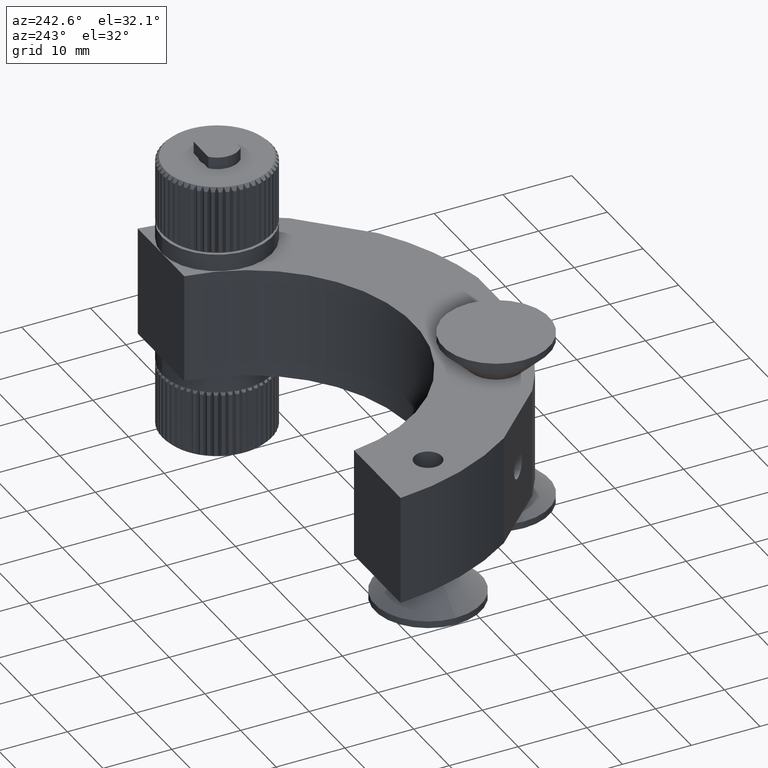
[diagram: clean part render]
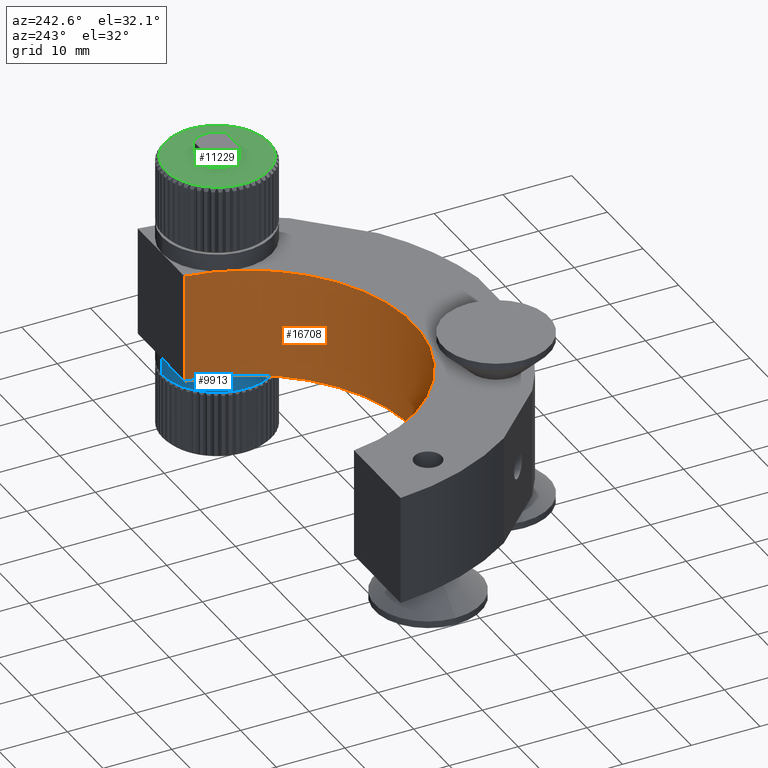
[diagram: same view with three faces highlighted in distinct colors, each labeled with its STEP entity id]
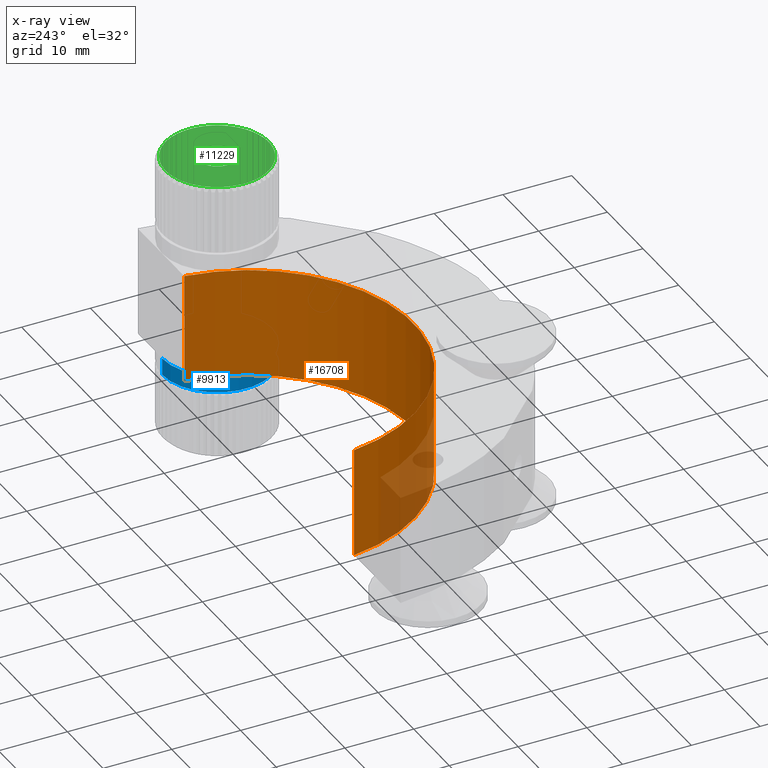
[diagram: x-ray of the same camera — body ghosted, the three highlighted faces saturated]
A machine part, auxiliary view with three faces highlighted in distinct colors.
The next image is the same camera in x-ray (body ghosted, the three faces saturated) — at least one of them is partly hidden behind the body in this view.
Their STEP definitions:

[orange] entity #16708 — the highlighted cylindrical surface (partial cylindrical patch) has radius 24 mm, axis along (-0, -0, -1).
#9 = CIRCLE ( 'NONE', #17246, 24.00000000000000400 ) ;
#1022 = VERTEX_POINT ( 'NONE', #12385 ) ;
#1084 = FACE_OUTER_BOUND ( 'NONE', #1544, .T. ) ;
#1292 = CYLINDRICAL_SURFACE ( 'NONE', #4463, 24.00000000000000400 ) ;
#1524 = EDGE_CURVE ( 'NONE', #11058, #1022, #7296, .T. ) ;
#1544 = EDGE_LOOP ( 'NONE', ( #13020, #7971, #2978, #14307 ) ) ;
#2602 = DIRECTION ( 'NONE',  ( -0.0000000000000000000, -0.0000000000000000000, -1.000000000000000000 ) ) ;
#2978 = ORIENTED_EDGE ( 'NONE', *, *, #16093, .F. ) ;
#3117 = DIRECTION ( 'NONE',  ( -1.000000000000000000, 0.0000000000000000000, 0.0000000000000000000 ) ) ;
#4430 = DIRECTION ( 'NONE',  ( -0.0000000000000000000, -0.0000000000000000000, -1.000000000000000000 ) ) ;
#4463 = AXIS2_PLACEMENT_3D ( 'NONE', #8891, #17143, #3117 ) ;
#4467 = DIRECTION ( 'NONE',  ( -0.0000000000000000000, -0.0000000000000000000, -1.000000000000000000 ) ) ;
#4930 = LINE ( 'NONE', #7989, #16016 ) ;
#5321 = CARTESIAN_POINT ( 'NONE',  ( 2.679613284590009600, 1.898059409918034800, -8.000000000000000000 ) ) ;
#5456 = CARTESIAN_POINT ( 'NONE',  ( 26.49137508417133100, -1.101940590081930300, 8.000000000000000000 ) ) ;
#5718 = EDGE_CURVE ( 'NONE', #1022, #10369, #16532, .T. ) ;
#7269 = DIRECTION ( 'NONE',  ( 1.000000000000000000, 0.0000000000000000000, 0.0000000000000000000 ) ) ;
#7296 = LINE ( 'NONE', #15579, #14278 ) ;
#7971 = ORIENTED_EDGE ( 'NONE', *, *, #11067, .F. ) ;
#7989 = CARTESIAN_POINT ( 'NONE',  ( -21.13214851499131400, -1.101940590081921200, 8.000000000000000000 ) ) ;
#7994 = AXIS2_PLACEMENT_3D ( 'NONE', #5321, #13778, #16496 ) ;
#8891 = CARTESIAN_POINT ( 'NONE',  ( 2.679613284590009600, 1.898059409918034800, 8.000000000000000000 ) ) ;
#10301 = VERTEX_POINT ( 'NONE', #15314 ) ;
#10369 = VERTEX_POINT ( 'NONE', #12266 ) ;
#11058 = VERTEX_POINT ( 'NONE', #5456 ) ;
#11067 = EDGE_CURVE ( 'NONE', #10301, #10369, #4930, .T. ) ;
#12266 = CARTESIAN_POINT ( 'NONE',  ( -21.13214851499131400, -1.101940590081921200, -8.000000000000000000 ) ) ;
#12385 = CARTESIAN_POINT ( 'NONE',  ( 26.49137508417133100, -1.101940590081930300, -8.000000000000000000 ) ) ;
#13020 = ORIENTED_EDGE ( 'NONE', *, *, #5718, .T. ) ;
#13778 = DIRECTION ( 'NONE',  ( -0.0000000000000000000, -0.0000000000000000000, -1.000000000000000000 ) ) ;
#14278 = VECTOR ( 'NONE', #4467, 1000.000000000000000 ) ;
#14307 = ORIENTED_EDGE ( 'NONE', *, *, #1524, .T. ) ;
#15314 = CARTESIAN_POINT ( 'NONE',  ( -21.13214851499131400, -1.101940590081921200, 8.000000000000000000 ) ) ;
#15579 = CARTESIAN_POINT ( 'NONE',  ( 26.49137508417133100, -1.101940590081930300, 8.000000000000000000 ) ) ;
#15671 = CARTESIAN_POINT ( 'NONE',  ( 2.679613284590009600, 1.898059409918034800, 8.000000000000000000 ) ) ;
#16016 = VECTOR ( 'NONE', #2602, 1000.000000000000000 ) ;
#16093 = EDGE_CURVE ( 'NONE', #11058, #10301, #9, .T. ) ;
#16496 = DIRECTION ( 'NONE',  ( 1.000000000000000000, 0.0000000000000000000, 0.0000000000000000000 ) ) ;
#16532 = CIRCLE ( 'NONE', #7994, 24.00000000000000400 ) ;
#16708 = ADVANCED_FACE ( 'NONE', ( #1084 ), #1292, .F. ) ;
#17143 = DIRECTION ( 'NONE',  ( -0.0000000000000000000, -0.0000000000000000000, -1.000000000000000000 ) ) ;
#17246 = AXIS2_PLACEMENT_3D ( 'NONE', #15671, #4430, #7269 ) ;

[blue] entity #9913 — the highlighted cylindrical surface (partial cylindrical patch) has radius 8 mm, axis along (0, 0, -1).
#455 = ORIENTED_EDGE ( 'NONE', *, *, #9788, .T. ) ;
#1033 = DIRECTION ( 'NONE',  ( 0.0000000000000000000, 1.000000000000000000, 0.0000000000000000000 ) ) ;
#1042 = ORIENTED_EDGE ( 'NONE', *, *, #8458, .F. ) ;
#1061 = ORIENTED_EDGE ( 'NONE', *, *, #6393, .T. ) ;
#2817 = FACE_OUTER_BOUND ( 'NONE', #16524, .T. ) ;
#2980 = CARTESIAN_POINT ( 'NONE',  ( 32.72957168722360400, -1.101940590081937500, -8.000000000000000000 ) ) ;
#3141 = CARTESIAN_POINT ( 'NONE',  ( 32.72957168722360400, -17.10194059008193800, -8.000000000000000000 ) ) ;
#3237 = CARTESIAN_POINT ( 'NONE',  ( 32.72957168722360400, -9.101940590081937900, -15.60000000000002600 ) ) ;
#4912 = VERTEX_POINT ( 'NONE', #13113 ) ;
#6393 = EDGE_CURVE ( 'NONE', #10683, #12988, #13271, .T. ) ;
#6638 = EDGE_CURVE ( 'NONE', #10683, #8582, #16063, .T. ) ;
#7770 = CARTESIAN_POINT ( 'NONE',  ( 32.72957168722360400, -17.10194059008193800, -10.49999999999999800 ) ) ;
#8124 = DIRECTION ( 'NONE',  ( 0.0000000000000000000, 0.0000000000000000000, -1.000000000000000000 ) ) ;
#8458 = EDGE_CURVE ( 'NONE', #8582, #4912, #17986, .T. ) ;
#8496 = DIRECTION ( 'NONE',  ( 0.0000000000000000000, 0.0000000000000000000, -1.000000000000000000 ) ) ;
#8523 = CARTESIAN_POINT ( 'NONE',  ( 32.72957168722360400, -1.101940590081937500, -15.60000000000002600 ) ) ;
#8545 = AXIS2_PLACEMENT_3D ( 'NONE', #3237, #17190, #11370 ) ;
#8574 = DIRECTION ( 'NONE',  ( 0.0000000000000000000, 0.0000000000000000000, -1.000000000000000000 ) ) ;
#8582 = VERTEX_POINT ( 'NONE', #7770 ) ;
#8874 = DIRECTION ( 'NONE',  ( 0.0000000000000000000, 1.000000000000000000, 0.0000000000000000000 ) ) ;
#8884 = CYLINDRICAL_SURFACE ( 'NONE', #8545, 8.000000000000000000 ) ;
#9280 = CARTESIAN_POINT ( 'NONE',  ( 32.72957168722360400, -9.101940590081937900, -8.000000000000000000 ) ) ;
#9772 = AXIS2_PLACEMENT_3D ( 'NONE', #9280, #8124, #1033 ) ;
#9788 = EDGE_CURVE ( 'NONE', #12988, #4912, #16723, .T. ) ;
#9913 = ADVANCED_FACE ( 'NONE', ( #2817 ), #8884, .T. ) ;
#10683 = VERTEX_POINT ( 'NONE', #3141 ) ;
#11370 = DIRECTION ( 'NONE',  ( 0.0000000000000000000, 1.000000000000000000, 0.0000000000000000000 ) ) ;
#12988 = VERTEX_POINT ( 'NONE', #2980 ) ;
#13113 = CARTESIAN_POINT ( 'NONE',  ( 32.72957168722360400, -1.101940590081937500, -10.49999999999999800 ) ) ;
#13271 = CIRCLE ( 'NONE', #9772, 8.000000000000000000 ) ;
#13913 = VECTOR ( 'NONE', #8574, 1000.000000000000000 ) ;
#15489 = CARTESIAN_POINT ( 'NONE',  ( 32.72957168722360400, -17.10194059008193800, -15.60000000000002600 ) ) ;
#15632 = VECTOR ( 'NONE', #8496, 1000.000000000000000 ) ;
#15807 = DIRECTION ( 'NONE',  ( 0.0000000000000000000, 0.0000000000000000000, -1.000000000000000000 ) ) ;
#16063 = LINE ( 'NONE', #15489, #15632 ) ;
#16316 = AXIS2_PLACEMENT_3D ( 'NONE', #17189, #15807, #8874 ) ;
#16524 = EDGE_LOOP ( 'NONE', ( #17023, #1061, #455, #1042 ) ) ;
#16723 = LINE ( 'NONE', #8523, #13913 ) ;
#17023 = ORIENTED_EDGE ( 'NONE', *, *, #6638, .F. ) ;
#17189 = CARTESIAN_POINT ( 'NONE',  ( 32.72957168722360400, -9.101940590081937900, -10.49999999999999800 ) ) ;
#17190 = DIRECTION ( 'NONE',  ( 0.0000000000000000000, 0.0000000000000000000, -1.000000000000000000 ) ) ;
#17986 = CIRCLE ( 'NONE', #16316, 8.000000000000000000 ) ;

[green] entity #11229 — the highlighted planar face has unit normal (0, 0, -1).
#39 = CARTESIAN_POINT ( 'NONE',  ( 32.72957168722360400, -9.101940590081930800, 20.49999999999999600 ) ) ;
#41 = EDGE_CURVE ( 'NONE', #13455, #6717, #4412, .T. ) ;
#135 = CARTESIAN_POINT ( 'NONE',  ( 32.72957168722360400, -9.101940590081930800, 20.49999999999999600 ) ) ;
#175 = FACE_BOUND ( 'NONE', #4512, .T. ) ;
#181 = AXIS2_PLACEMENT_3D ( 'NONE', #15519, #16735, #16898 ) ;
#206 = VERTEX_POINT ( 'NONE', #10431 ) ;
#263 = CARTESIAN_POINT ( 'NONE',  ( 36.66704107724093800, -15.48522617061788900, 20.49999999999994000 ) ) ;
#437 = EDGE_CURVE ( 'NONE', #2312, #17559, #6136, .T. ) ;
#444 = CIRCLE ( 'NONE', #1977, 7.500000000000076400 ) ;
#445 = DIRECTION ( 'NONE',  ( -4.084704991248906100E-017, -1.996894397135098800E-016, 1.000000000000000000 ) ) ;
#466 = DIRECTION ( 'NONE',  ( -0.7699256614267302500, 0.6381335877985204700, 0.0000000000000000000 ) ) ;
#492 = DIRECTION ( 'NONE',  ( -0.7699256614267365700, 0.6381335877985129200, 0.0000000000000000000 ) ) ;
#523 = AXIS2_PLACEMENT_3D ( 'NONE', #2425, #14067, #11970 ) ;
#537 = CIRCLE ( 'NONE', #3533, 7.500000000000075500 ) ;
#638 = CARTESIAN_POINT ( 'NONE',  ( 25.42146428647427600, -10.78763517069643100, 20.49999999999999600 ) ) ;
#642 = AXIS2_PLACEMENT_3D ( 'NONE', #12780, #14148, #8644 ) ;
#672 = DIRECTION ( 'NONE',  ( -4.084704991248906100E-017, -1.996894397135098800E-016, 1.000000000000000000 ) ) ;
#703 = EDGE_CURVE ( 'NONE', #14466, #1725, #2444, .T. ) ;
#725 = EDGE_CURVE ( 'NONE', #3020, #11969, #10551, .T. ) ;
#793 = DIRECTION ( 'NONE',  ( -0.7699256614267370200, 0.6381335877985121500, 0.0000000000000000000 ) ) ;
#822 = DIRECTION ( 'NONE',  ( -4.084704991248906100E-017, -1.996894397135098800E-016, 1.000000000000000000 ) ) ;
#893 = CARTESIAN_POINT ( 'NONE',  ( 29.04048497832607000, -15.63192062483210000, 20.50000000000005700 ) ) ;
#993 = AXIS2_PLACEMENT_3D ( 'NONE', #1752, #4377, #11346 ) ;
#1017 = DIRECTION ( 'NONE',  ( -0.7699256614267352400, 0.6381335877985142600, 0.0000000000000000000 ) ) ;
#1032 = DIRECTION ( 'NONE',  ( -0.7699256614267361300, 0.6381335877985134800, 0.0000000000000000000 ) ) ;
#1047 = CIRCLE ( 'NONE', #523, 7.500000000000076400 ) ;
#1091 = AXIS2_PLACEMENT_3D ( 'NONE', #5547, #14187, #1714 ) ;
#1107 = VERTEX_POINT ( 'NONE', #7161 ) ;
#1157 = DIRECTION ( 'NONE',  ( -0.7699256614267580000, 0.6381335877984869500, 0.0000000000000000000 ) ) ;
#1168 = EDGE_CURVE ( 'NONE', #9960, #6707, #3404, .T. ) ;
#1212 = VERTEX_POINT ( 'NONE', #2175 ) ;
#1340 = CARTESIAN_POINT ( 'NONE',  ( 26.02186996956961500, -12.45704679808516100, 20.49999999999999600 ) ) ;
#1359 = DIRECTION ( 'NONE',  ( -4.084704991248906100E-017, -1.996894397135098800E-016, 1.000000000000000000 ) ) ;
#1388 = CIRCLE ( 'NONE', #3319, 7.500000000000076400 ) ;
#1436 = ORIENTED_EDGE ( 'NONE', *, *, #7013, .T. ) ;
#1457 = DIRECTION ( 'NONE',  ( -0.7699256614267495600, 0.6381335877984971600, 0.0000000000000000000 ) ) ;
#1467 = FACE_OUTER_BOUND ( 'NONE', #10613, .T. ) ;
#1475 = CIRCLE ( 'NONE', #8859, 7.500000000000076400 ) ;
#1481 = DIRECTION ( 'NONE',  ( -4.084704991248906100E-017, -1.996894397135098800E-016, 1.000000000000000000 ) ) ;
#1566 = AXIS2_PLACEMENT_3D ( 'NONE', #1935, #4729, #12935 ) ;
#1610 = CARTESIAN_POINT ( 'NONE',  ( 32.72957168722360400, -9.101940590081930800, 20.49999999999999600 ) ) ;
#1618 = DIRECTION ( 'NONE',  ( -0.7699256614267370200, 0.6381335877985121500, 0.0000000000000000000 ) ) ;
#1624 = VERTEX_POINT ( 'NONE', #14436 ) ;
#1633 = ORIENTED_EDGE ( 'NONE', *, *, #2031, .T. ) ;
#1650 = EDGE_CURVE ( 'NONE', #13944, #16092, #4033, .T. ) ;
#1714 = DIRECTION ( 'NONE',  ( -0.7699256614267370200, 0.6381335877985121500, 0.0000000000000000000 ) ) ;
#1725 = VERTEX_POINT ( 'NONE', #14493 ) ;
#1733 = ORIENTED_EDGE ( 'NONE', *, *, #14565, .T. ) ;
#1752 = CARTESIAN_POINT ( 'NONE',  ( 32.72957168722360400, -9.101940590081930800, 20.49999999999999600 ) ) ;
#1764 = EDGE_CURVE ( 'NONE', #17982, #10414, #1857, .T. ) ;
#1795 = CARTESIAN_POINT ( 'NONE',  ( 39.92498248568941200, -6.986269670179265900, 20.49999999999994000 ) ) ;
#1857 = CIRCLE ( 'NONE', #3634, 7.500000000000076400 ) ;
#1863 = AXIS2_PLACEMENT_3D ( 'NONE', #135, #16710, #15495 ) ;
#1879 = ORIENTED_EDGE ( 'NONE', *, *, #4557, .T. ) ;
#1901 = ORIENTED_EDGE ( 'NONE', *, *, #16601, .T. ) ;
#1904 = CIRCLE ( 'NONE', #17267, 7.500000000000076400 ) ;
#1935 = CARTESIAN_POINT ( 'NONE',  ( 32.72957168722360400, -9.101940590081930800, 20.49999999999999600 ) ) ;
#1939 = CARTESIAN_POINT ( 'NONE',  ( 32.72957168722360400, -9.101940590081930800, 20.49999999999999600 ) ) ;
#1977 = AXIS2_PLACEMENT_3D ( 'NONE', #13265, #7711, #7833 ) ;
#1981 = DIRECTION ( 'NONE',  ( -0.7699256614267371300, 0.6381335877985121500, 0.0000000000000000000 ) ) ;
#1988 = EDGE_CURVE ( 'NONE', #206, #8560, #9864, .T. ) ;
#1996 = AXIS2_PLACEMENT_3D ( 'NONE', #14229, #15497, #15446 ) ;
#2031 = EDGE_CURVE ( 'NONE', #12019, #17261, #9441, .T. ) ;
#2048 = VERTEX_POINT ( 'NONE', #3631 ) ;
#2125 = EDGE_CURVE ( 'NONE', #12662, #3220, #8364, .T. ) ;
#2175 = CARTESIAN_POINT ( 'NONE',  ( 28.29405687897052200, -15.14976733906937400, 20.50000000000005700 ) ) ;
#2222 = CARTESIAN_POINT ( 'NONE',  ( 26.55296185857062600, -4.847590930664035900, 20.49999999999999600 ) ) ;
#2255 = CARTESIAN_POINT ( 'NONE',  ( 32.72957168722360400, -9.101940590081930800, 20.49999999999999600 ) ) ;
#2260 = CARTESIAN_POINT ( 'NONE',  ( 32.72957168722360400, -9.101940590081930800, 20.49999999999999600 ) ) ;
#2312 = VERTEX_POINT ( 'NONE', #13461 ) ;
#2315 = AXIS2_PLACEMENT_3D ( 'NONE', #15435, #6990, #1457 ) ;
#2317 = ORIENTED_EDGE ( 'NONE', *, *, #14251, .T. ) ;
#2386 = CARTESIAN_POINT ( 'NONE',  ( 32.72957168722360400, -9.101940590081930800, 20.49999999999999600 ) ) ;
#2417 = CARTESIAN_POINT ( 'NONE',  ( 35.88443293113601100, -15.90611949217290400, 20.49999999999999600 ) ) ;
#2425 = CARTESIAN_POINT ( 'NONE',  ( 32.72957168722360400, -9.101940590081930800, 20.49999999999999600 ) ) ;
#2444 = CIRCLE ( 'NONE', #8692, 2.500000000000014700 ) ;
#2478 = EDGE_CURVE ( 'NONE', #14253, #12483, #4021, .T. ) ;
#2480 = DIRECTION ( 'NONE',  ( -0.7699256614267370200, 0.6381335877985121500, 0.0000000000000000000 ) ) ;
#2520 = AXIS2_PLACEMENT_3D ( 'NONE', #13734, #15018, #10781 ) ;
#2537 = DIRECTION ( 'NONE',  ( -0.7699256614267528900, 0.6381335877984930500, 0.0000000000000000000 ) ) ;
#2554 = DIRECTION ( 'NONE',  ( -0.7699256614267167000, 0.6381335877985367900, 0.0000000000000000000 ) ) ;
#2555 = CIRCLE ( 'NONE', #14612, 7.500000000000076400 ) ;
#2607 = CIRCLE ( 'NONE', #10612, 7.500000000000075500 ) ;
#2631 = VERTEX_POINT ( 'NONE', #8926 ) ;
#2632 = ORIENTED_EDGE ( 'NONE', *, *, #8383, .T. ) ;
#2650 = CARTESIAN_POINT ( 'NONE',  ( 32.72957168722360400, -9.101940590081930800, 20.49999999999999600 ) ) ;
#2664 = CARTESIAN_POINT ( 'NONE',  ( 35.20539366592880300, -2.022371003605616800, 20.49999999999999600 ) ) ;
#2815 = EDGE_CURVE ( 'NONE', #13733, #11617, #537, .T. ) ;
#2852 = EDGE_CURVE ( 'NONE', #8560, #2048, #13140, .T. ) ;
#2931 = CARTESIAN_POINT ( 'NONE',  ( 37.51557359571245300, -3.327498129381377900, 20.49999999999999600 ) ) ;
#2964 = ORIENTED_EDGE ( 'NONE', *, *, #4421, .T. ) ;
#3020 = VERTEX_POINT ( 'NONE', #3126 ) ;
#3046 = ORIENTED_EDGE ( 'NONE', *, *, #9862, .T. ) ;
#3126 = CARTESIAN_POINT ( 'NONE',  ( 27.09949031434748400, -4.146924572469549400, 20.49999999999999600 ) ) ;
#3202 = CARTESIAN_POINT ( 'NONE',  ( 32.72957168722360400, -9.101940590081930800, 20.49999999999999600 ) ) ;
#3220 = VERTEX_POINT ( 'NONE', #8943 ) ;
#3259 = ORIENTED_EDGE ( 'NONE', *, *, #3606, .T. ) ;
#3267 = EDGE_CURVE ( 'NONE', #15865, #17782, #1388, .T. ) ;
#3270 = AXIS2_PLACEMENT_3D ( 'NONE', #1610, #9805, #11208 ) ;
#3319 = AXIS2_PLACEMENT_3D ( 'NONE', #5236, #10740, #9293 ) ;
#3374 = DIRECTION ( 'NONE',  ( -4.084704991248906100E-017, -1.996894397135098800E-016, 1.000000000000000000 ) ) ;
#3384 = CARTESIAN_POINT ( 'NONE',  ( 38.64330338712696300, -13.71472471483329700, 20.49999999999994000 ) ) ;
#3404 = CIRCLE ( 'NONE', #4277, 7.500000000000076400 ) ;
#3455 = EDGE_CURVE ( 'NONE', #6804, #7744, #10923, .T. ) ;
#3521 = EDGE_CURVE ( 'NONE', #5018, #9427, #6158, .T. ) ;
#3533 = AXIS2_PLACEMENT_3D ( 'NONE', #9580, #16629, #2537 ) ;
#3560 = AXIS2_PLACEMENT_3D ( 'NONE', #1939, #14834, #17611 ) ;
#3606 = EDGE_CURVE ( 'NONE', #4743, #13455, #17880, .T. ) ;
#3631 = CARTESIAN_POINT ( 'NONE',  ( 32.42932934082261200, -16.59592848261471300, 20.50000000000005700 ) ) ;
#3634 = AXIS2_PLACEMENT_3D ( 'NONE', #9185, #822, #6284 ) ;
#3715 = DIRECTION ( 'NONE',  ( -4.084704991248906100E-017, -1.996894397135098800E-016, 1.000000000000000000 ) ) ;
#3776 = ORIENTED_EDGE ( 'NONE', *, *, #1650, .T. ) ;
#3870 = CARTESIAN_POINT ( 'NONE',  ( 32.72957168722360400, -9.101940590081930800, 20.49999999999999600 ) ) ;
#3897 = CARTESIAN_POINT ( 'NONE',  ( 25.67213163389726900, -11.64015647800509400, 20.49999999999999600 ) ) ;
#3980 = VERTEX_POINT ( 'NONE', #6828 ) ;
#3994 = VERTEX_POINT ( 'NONE', #9564 ) ;
#4021 = CIRCLE ( 'NONE', #7934, 7.500000000000076400 ) ;
#4033 = CIRCLE ( 'NONE', #12703, 7.500000000000075500 ) ;
#4093 = CIRCLE ( 'NONE', #12597, 7.500000000000076400 ) ;
#4103 = CARTESIAN_POINT ( 'NONE',  ( 32.72957168722360400, -9.101940590081930800, 20.49999999999999600 ) ) ;
#4116 = AXIS2_PLACEMENT_3D ( 'NONE', #2386, #5157, #13505 ) ;
#4131 = CARTESIAN_POINT ( 'NONE',  ( 32.72957168722360400, -9.101940590081930800, 20.49999999999999600 ) ) ;
#4162 = CIRCLE ( 'NONE', #17659, 7.500000000000076400 ) ;
#4277 = AXIS2_PLACEMENT_3D ( 'NONE', #6179, #9093, #11759 ) ;
#4302 = DIRECTION ( 'NONE',  ( -0.7699256614267513400, 0.6381335877984950500, 0.0000000000000000000 ) ) ;
#4332 = AXIS2_PLACEMENT_3D ( 'NONE', #7750, #16321, #10710 ) ;
#4377 = DIRECTION ( 'NONE',  ( -4.084704991248906100E-017, -1.996894397135098800E-016, 1.000000000000000000 ) ) ;
#4378 = CIRCLE ( 'NONE', #1091, 7.500000000000076400 ) ;
#4412 = CIRCLE ( 'NONE', #15320, 7.500000000000075500 ) ;
#4421 = EDGE_CURVE ( 'NONE', #17261, #11781, #17866, .T. ) ;
#4441 = DIRECTION ( 'NONE',  ( -0.7699256614267269100, 0.6381335877985244700, 0.0000000000000000000 ) ) ;
#4512 = EDGE_LOOP ( 'NONE', ( #12138, #10183 ) ) ;
#4516 = CIRCLE ( 'NONE', #993, 7.500000000000075500 ) ;
#4525 = CARTESIAN_POINT ( 'NONE',  ( 36.02533925292365800, -2.364885138856968300, 20.49999999999999600 ) ) ;
#4554 = DIRECTION ( 'NONE',  ( -0.7699256614267131500, 0.6381335877985410100, 0.0000000000000000000 ) ) ;
#4557 = EDGE_CURVE ( 'NONE', #1107, #5018, #14196, .T. ) ;
#4596 = AXIS2_PLACEMENT_3D ( 'NONE', #8078, #5341, #1157 ) ;
#4621 = CARTESIAN_POINT ( 'NONE',  ( 32.72957168722360400, -9.101940590081930800, 20.49999999999999600 ) ) ;
#4664 = CARTESIAN_POINT ( 'NONE',  ( 40.09709712543009600, -10.50535389961707700, 20.49999999999994000 ) ) ;
#4669 = CARTESIAN_POINT ( 'NONE',  ( 32.72957168722360400, -9.101940590081930800, 20.49999999999999600 ) ) ;
#4729 = DIRECTION ( 'NONE',  ( -4.084704991248906100E-017, -1.996894397135098800E-016, 1.000000000000000000 ) ) ;
#4743 = VERTEX_POINT ( 'NONE', #9817 ) ;
#4923 = CARTESIAN_POINT ( 'NONE',  ( 38.73801116529110500, -4.613215265627322200, 20.49999999999999600 ) ) ;
#4945 = VERTEX_POINT ( 'NONE', #6173 ) ;
#5007 = VERTEX_POINT ( 'NONE', #2222 ) ;
#5009 = ORIENTED_EDGE ( 'NONE', *, *, #1988, .T. ) ;
#5018 = VERTEX_POINT ( 'NONE', #16418 ) ;
#5157 = DIRECTION ( 'NONE',  ( -4.084704991248906100E-017, -1.996894397135098800E-016, 1.000000000000000000 ) ) ;
#5236 = CARTESIAN_POINT ( 'NONE',  ( 32.72957168722360400, -9.101940590081930800, 20.49999999999999600 ) ) ;
#5280 = CARTESIAN_POINT ( 'NONE',  ( 35.05753744870783400, -16.23149705688675900, 20.50000000000005700 ) ) ;
#5290 = ORIENTED_EDGE ( 'NONE', *, *, #13493, .T. ) ;
#5341 = DIRECTION ( 'NONE',  ( -4.084704991248906100E-017, -1.996894397135098800E-016, 1.000000000000000000 ) ) ;
#5516 = CARTESIAN_POINT ( 'NONE',  ( 32.72957168722360400, -9.101940590081930800, 20.49999999999999600 ) ) ;
#5529 = ORIENTED_EDGE ( 'NONE', *, *, #1764, .T. ) ;
#5536 = EDGE_CURVE ( 'NONE', #15667, #3994, #4162, .T. ) ;
#5547 = CARTESIAN_POINT ( 'NONE',  ( 32.72957168722360400, -9.101940590081930800, 20.49999999999999600 ) ) ;
#5576 = CARTESIAN_POINT ( 'NONE',  ( 25.22997770069956000, -9.023901899075594800, 20.49999999999999600 ) ) ;
#5586 = ORIENTED_EDGE ( 'NONE', *, *, #16709, .T. ) ;
#5618 = DIRECTION ( 'NONE',  ( -0.7699256614267371300, 0.6381335877985121500, 0.0000000000000000000 ) ) ;
#5649 = VERTEX_POINT ( 'NONE', #2417 ) ;
#5667 = DIRECTION ( 'NONE',  ( -4.084704991248906100E-017, -1.996894397135098800E-016, 1.000000000000000000 ) ) ;
#5721 = CARTESIAN_POINT ( 'NONE',  ( 32.72957168722360400, -9.101940590081930800, 20.49999999999999600 ) ) ;
#5757 = ORIENTED_EDGE ( 'NONE', *, *, #8750, .T. ) ;
#5802 = CARTESIAN_POINT ( 'NONE',  ( 29.83869976849677400, -16.02240730479974900, 20.50000000000005700 ) ) ;
#5836 = ORIENTED_EDGE ( 'NONE', *, *, #12356, .T. ) ;
#5842 = CIRCLE ( 'NONE', #11341, 7.500000000000075500 ) ;
#5942 = CARTESIAN_POINT ( 'NONE',  ( 32.58533817934714700, -1.603327605322280900, 20.49999999999999600 ) ) ;
#6006 = DIRECTION ( 'NONE',  ( -4.084704991248906100E-017, -1.996894397135098800E-016, 1.000000000000000000 ) ) ;
#6040 = CIRCLE ( 'NONE', #4116, 7.500000000000075500 ) ;
#6085 = CIRCLE ( 'NONE', #642, 7.500000000000074600 ) ;
#6115 = CARTESIAN_POINT ( 'NONE',  ( 32.72957168722360400, -9.101940590081930800, 20.49999999999999600 ) ) ;
#6136 = CIRCLE ( 'NONE', #2520, 7.500000000000076400 ) ;
#6157 = CARTESIAN_POINT ( 'NONE',  ( 32.72957168722360400, -9.101940590081930800, 20.49999999999999600 ) ) ;
#6158 = CIRCLE ( 'NONE', #9240, 7.500000000000075500 ) ;
#6173 = CARTESIAN_POINT ( 'NONE',  ( 34.35069296542162200, -1.779238506740447300, 20.49999999999999600 ) ) ;
#6179 = CARTESIAN_POINT ( 'NONE',  ( 32.72957168722360400, -9.101940590081930800, 20.49999999999999600 ) ) ;
#6183 = CARTESIAN_POINT ( 'NONE',  ( 40.21137131399340300, -9.624122880923623700, 20.49999999999994000 ) ) ;
#6275 = EDGE_CURVE ( 'NONE', #3220, #17982, #444, .T. ) ;
#6284 = DIRECTION ( 'NONE',  ( -0.7699256614267370200, 0.6381335877985121500, 0.0000000000000000000 ) ) ;
#6375 = AXIS2_PLACEMENT_3D ( 'NONE', #9207, #15910, #793 ) ;
#6428 = ORIENTED_EDGE ( 'NONE', *, *, #10663, .T. ) ;
#6464 = DIRECTION ( 'NONE',  ( -0.7699256614267426800, 0.6381335877985053800, 0.0000000000000000000 ) ) ;
#6566 = AXIS2_PLACEMENT_3D ( 'NONE', #5721, #5667, #8613 ) ;
#6567 = DIRECTION ( 'NONE',  ( -0.7699256614267773200, 0.6381335877984636300, 0.0000000000000000000 ) ) ;
#6637 = AXIS2_PLACEMENT_3D ( 'NONE', #17013, #10011, #12770 ) ;
#6646 = EDGE_CURVE ( 'NONE', #9427, #13733, #15856, .T. ) ;
#6681 = CARTESIAN_POINT ( 'NONE',  ( 32.72957168722360400, -9.101940590081930800, 20.49999999999999600 ) ) ;
#6707 = VERTEX_POINT ( 'NONE', #4664 ) ;
#6717 = VERTEX_POINT ( 'NONE', #3384 ) ;
#6733 = ORIENTED_EDGE ( 'NONE', *, *, #10363, .T. ) ;
#6740 = DIRECTION ( 'NONE',  ( -4.084704991248906100E-017, -1.996894397135098800E-016, 1.000000000000000000 ) ) ;
#6761 = EDGE_CURVE ( 'NONE', #4945, #13944, #10397, .T. ) ;
#6800 = CARTESIAN_POINT ( 'NONE',  ( 38.05622686691344800, -14.38178382607710400, 20.49999999999994000 ) ) ;
#6804 = VERTEX_POINT ( 'NONE', #893 ) ;
#6828 = CARTESIAN_POINT ( 'NONE',  ( 36.79901948770769600, -2.801972764835876500, 20.49999999999999600 ) ) ;
#6864 = AXIS2_PLACEMENT_3D ( 'NONE', #2650, #8275, #9669 ) ;
#6896 = ORIENTED_EDGE ( 'NONE', *, *, #15518, .T. ) ;
#6918 = VERTEX_POINT ( 'NONE', #11190 ) ;
#6990 = DIRECTION ( 'NONE',  ( -4.084704991248906100E-017, -1.996894397135098800E-016, 1.000000000000000000 ) ) ;
#7013 = EDGE_CURVE ( 'NONE', #17106, #7773, #7137, .T. ) ;
#7079 = CIRCLE ( 'NONE', #9729, 7.500000000000075500 ) ;
#7137 = CIRCLE ( 'NONE', #6637, 7.500000000000076400 ) ;
#7161 = CARTESIAN_POINT ( 'NONE',  ( 40.22061743610374400, -8.735561567504387200, 20.49999999999994000 ) ) ;
#7168 = CIRCLE ( 'NONE', #17841, 7.500000000000074600 ) ;
#7242 = CARTESIAN_POINT ( 'NONE',  ( 32.72957168722360400, -9.101940590081930800, 20.49999999999999600 ) ) ;
#7259 = DIRECTION ( 'NONE',  ( -4.084704991248906100E-017, -1.996894397135098800E-016, 1.000000000000000000 ) ) ;
#7420 = CARTESIAN_POINT ( 'NONE',  ( 32.72957168722360400, -9.101940590081930800, 20.49999999999999600 ) ) ;
#7460 = EDGE_CURVE ( 'NONE', #2048, #2312, #12370, .T. ) ;
#7492 = DIRECTION ( 'NONE',  ( -0.7699256614267370200, 0.6381335877985121500, 0.0000000000000000000 ) ) ;
#7508 = DIRECTION ( 'NONE',  ( -4.084704991248906100E-017, -1.996894397135098800E-016, 1.000000000000000000 ) ) ;
#7529 = DIRECTION ( 'NONE',  ( -4.084704991248906100E-017, -1.996894397135098800E-016, 1.000000000000000000 ) ) ;
#7531 = VERTEX_POINT ( 'NONE', #11230 ) ;
#7548 = VERTEX_POINT ( 'NONE', #263 ) ;
#7571 = DIRECTION ( 'NONE',  ( -0.7699256614267167000, 0.6381335877985367900, 0.0000000000000000000 ) ) ;
#7577 = CARTESIAN_POINT ( 'NONE',  ( 39.56133303035754500, -12.19661940224668600, 20.49999999999994000 ) ) ;
#7711 = DIRECTION ( 'NONE',  ( -4.084704991248906100E-017, -1.996894397135098800E-016, 1.000000000000000000 ) ) ;
#7740 = ORIENTED_EDGE ( 'NONE', *, *, #1168, .T. ) ;
#7744 = VERTEX_POINT ( 'NONE', #5802 ) ;
#7750 = CARTESIAN_POINT ( 'NONE',  ( 32.72957168722360400, -9.101940590081930800, 20.49999999999999600 ) ) ;
#7773 = VERTEX_POINT ( 'NONE', #11265 ) ;
#7833 = DIRECTION ( 'NONE',  ( -0.7699256614267370200, 0.6381335877985121500, 0.0000000000000000000 ) ) ;
#7934 = AXIS2_PLACEMENT_3D ( 'NONE', #7420, #11552, #17141 ) ;
#7957 = AXIS2_PLACEMENT_3D ( 'NONE', #2255, #13442, #10802 ) ;
#7968 = EDGE_CURVE ( 'NONE', #10414, #15865, #13016, .T. ) ;
#7997 = ORIENTED_EDGE ( 'NONE', *, *, #9074, .T. ) ;
#8004 = VERTEX_POINT ( 'NONE', #2664 ) ;
#8078 = CARTESIAN_POINT ( 'NONE',  ( 32.72957168722360400, -9.101940590081930800, 20.49999999999999600 ) ) ;
#8092 = CARTESIAN_POINT ( 'NONE',  ( 39.22673428300424100, -5.355358387061531100, 20.49999999999994000 ) ) ;
#8131 = ORIENTED_EDGE ( 'NONE', *, *, #9511, .T. ) ;
#8192 = AXIS2_PLACEMENT_3D ( 'NONE', #5516, #16748, #15531 ) ;
#8202 = ORIENTED_EDGE ( 'NONE', *, *, #11632, .T. ) ;
#8235 = EDGE_CURVE ( 'NONE', #15870, #1624, #8442, .T. ) ;
#8275 = DIRECTION ( 'NONE',  ( -4.084704991248906100E-017, -1.996894397135098800E-016, 1.000000000000000000 ) ) ;
#8364 = CIRCLE ( 'NONE', #12355, 7.500000000000076400 ) ;
#8383 = EDGE_CURVE ( 'NONE', #17559, #15836, #1475, .T. ) ;
#8393 = DIRECTION ( 'NONE',  ( -0.7699256614267370200, 0.6381335877985121500, 0.0000000000000000000 ) ) ;
#8435 = VERTEX_POINT ( 'NONE', #11544 ) ;
#8442 = CIRCLE ( 'NONE', #6864, 7.500000000000075500 ) ;
#8444 = ORIENTED_EDGE ( 'NONE', *, *, #7968, .T. ) ;
#8467 = CIRCLE ( 'NONE', #12727, 7.500000000000076400 ) ;
#8560 = VERTEX_POINT ( 'NONE', #10494 ) ;
#8613 = DIRECTION ( 'NONE',  ( -0.7699256614267348000, 0.6381335877985149200, 0.0000000000000000000 ) ) ;
#8637 = CARTESIAN_POINT ( 'NONE',  ( 39.87939902952938800, -11.36688407176462500, 20.49999999999994000 ) ) ;
#8638 = ORIENTED_EDGE ( 'NONE', *, *, #11659, .T. ) ;
#8644 = DIRECTION ( 'NONE',  ( -0.7699256614267302500, 0.6381335877985204700, 0.0000000000000000000 ) ) ;
#8675 = DIRECTION ( 'NONE',  ( -4.084704991248906100E-017, -1.996894397135098800E-016, 1.000000000000000000 ) ) ;
#8680 = ORIENTED_EDGE ( 'NONE', *, *, #3455, .T. ) ;
#8683 = ORIENTED_EDGE ( 'NONE', *, *, #2815, .T. ) ;
#8692 = AXIS2_PLACEMENT_3D ( 'NONE', #39, #16605, #5618 ) ;
#8719 = EDGE_CURVE ( 'NONE', #11617, #12019, #4093, .T. ) ;
#8735 = DIRECTION ( 'NONE',  ( -0.7699256614267245800, 0.6381335877985272500, 0.0000000000000000000 ) ) ;
#8737 = ORIENTED_EDGE ( 'NONE', *, *, #2852, .T. ) ;
#8744 = CARTESIAN_POINT ( 'NONE',  ( 32.72957168722360400, -9.101940590081930800, 20.49999999999999600 ) ) ;
#8750 = EDGE_CURVE ( 'NONE', #7744, #206, #6040, .T. ) ;
#8753 = ORIENTED_EDGE ( 'NONE', *, *, #7460, .T. ) ;
#8767 = DIRECTION ( 'NONE',  ( -4.084704991248906100E-017, -1.996894397135098800E-016, 1.000000000000000000 ) ) ;
#8782 = DIRECTION ( 'NONE',  ( 4.084704991248906100E-017, 1.996894397135098800E-016, -1.000000000000000000 ) ) ;
#8785 = CARTESIAN_POINT ( 'NONE',  ( 32.72957168722360400, -9.101940590081930800, 20.49999999999999600 ) ) ;
#8859 = AXIS2_PLACEMENT_3D ( 'NONE', #7242, #11428, #8393 ) ;
#8877 = EDGE_CURVE ( 'NONE', #11872, #6918, #13646, .T. ) ;
#8926 = CARTESIAN_POINT ( 'NONE',  ( 27.72505277130895300, -3.515815777633280800, 20.49999999999999600 ) ) ;
#8943 = CARTESIAN_POINT ( 'NONE',  ( 25.27338674738880500, -9.911450406564037900, 20.49999999999999600 ) ) ;
#9074 = EDGE_CURVE ( 'NONE', #8435, #17106, #2555, .T. ) ;
#9093 = DIRECTION ( 'NONE',  ( -4.084704991248906100E-017, -1.996894397135098800E-016, 1.000000000000000000 ) ) ;
#9094 = DIRECTION ( 'NONE',  ( -0.7699256614267370200, 0.6381335877985121500, 0.0000000000000000000 ) ) ;
#9185 = CARTESIAN_POINT ( 'NONE',  ( 32.72957168722360400, -9.101940590081930800, 20.49999999999999600 ) ) ;
#9192 = EDGE_CURVE ( 'NONE', #3994, #1212, #13486, .T. ) ;
#9207 = CARTESIAN_POINT ( 'NONE',  ( 32.72957168722360400, -9.101940590081930800, 20.49999999999999600 ) ) ;
#9210 = CIRCLE ( 'NONE', #2315, 7.500000000000075500 ) ;
#9234 = DIRECTION ( 'NONE',  ( -0.7699256614267387900, 0.6381335877985100400, 0.0000000000000000000 ) ) ;
#9240 = AXIS2_PLACEMENT_3D ( 'NONE', #16948, #12753, #4441 ) ;
#9251 = AXIS2_PLACEMENT_3D ( 'NONE', #10812, #1359, #17983 ) ;
#9257 = CIRCLE ( 'NONE', #12993, 7.500000000000075500 ) ;
#9293 = DIRECTION ( 'NONE',  ( -0.7699256614267370200, 0.6381335877985121500, 0.0000000000000000000 ) ) ;
#9413 = ORIENTED_EDGE ( 'NONE', *, *, #6275, .T. ) ;
#9427 = VERTEX_POINT ( 'NONE', #1795 ) ;
#9441 = CIRCLE ( 'NONE', #4332, 7.500000000000074600 ) ;
#9511 = EDGE_CURVE ( 'NONE', #11969, #5007, #8467, .T. ) ;
#9526 = CARTESIAN_POINT ( 'NONE',  ( 29.17716739544080800, -2.496607612273405300, 20.49999999999999600 ) ) ;
#9562 = AXIS2_PLACEMENT_3D ( 'NONE', #4669, #14403, #15784 ) ;
#9564 = CARTESIAN_POINT ( 'NONE',  ( 27.60989368475447800, -14.58271582275055100, 20.50000000000005700 ) ) ;
#9580 = CARTESIAN_POINT ( 'NONE',  ( 32.72957168722360400, -9.101940590081930800, 20.49999999999999600 ) ) ;
#9624 = DIRECTION ( 'NONE',  ( -0.7699256614267185900, 0.6381335877985346800, 0.0000000000000000000 ) ) ;
#9660 = DIRECTION ( 'NONE',  ( -4.084704991248906100E-017, -1.996894397135098800E-016, 1.000000000000000000 ) ) ;
#9669 = DIRECTION ( 'NONE',  ( -0.7699256614267177000, 0.6381335877985354600, 0.0000000000000000000 ) ) ;
#9729 = AXIS2_PLACEMENT_3D ( 'NONE', #11463, #7508, #8735 ) ;
#9805 = DIRECTION ( 'NONE',  ( -4.084704991248906100E-017, -1.996894397135098800E-016, 1.000000000000000000 ) ) ;
#9813 = ORIENTED_EDGE ( 'NONE', *, *, #8719, .T. ) ;
#9814 = CARTESIAN_POINT ( 'NONE',  ( 32.72957168722360400, -9.101940590081930800, 20.49999999999999600 ) ) ;
#9817 = CARTESIAN_POINT ( 'NONE',  ( 37.39437578414923300, -14.97472551184656600, 20.49999999999994000 ) ) ;
#9831 = CIRCLE ( 'NONE', #12708, 7.500000000000076400 ) ;
#9862 = EDGE_CURVE ( 'NONE', #6918, #7531, #13462, .T. ) ;
#9864 = CIRCLE ( 'NONE', #9562, 7.500000000000075500 ) ;
#9960 = VERTEX_POINT ( 'NONE', #8637 ) ;
#9997 = AXIS2_PLACEMENT_3D ( 'NONE', #12260, #14893, #1032 ) ;
#10011 = DIRECTION ( 'NONE',  ( -4.084704991248906100E-017, -1.996894397135098800E-016, 1.000000000000000000 ) ) ;
#10097 = EDGE_CURVE ( 'NONE', #5649, #7548, #5842, .T. ) ;
#10107 = DIRECTION ( 'NONE',  ( -0.7699256614267296900, 0.6381335877985211400, 0.0000000000000000000 ) ) ;
#10114 = EDGE_CURVE ( 'NONE', #10864, #1107, #11911, .T. ) ;
#10126 = EDGE_CURVE ( 'NONE', #17782, #15667, #1904, .T. ) ;
#10131 = ORIENTED_EDGE ( 'NONE', *, *, #2478, .T. ) ;
#10183 = ORIENTED_EDGE ( 'NONE', *, *, #14684, .T. ) ;
#10219 = DIRECTION ( 'NONE',  ( -4.084704991248906100E-017, -1.996894397135098800E-016, 1.000000000000000000 ) ) ;
#10277 = ORIENTED_EDGE ( 'NONE', *, *, #14240, .T. ) ;
#10363 = EDGE_CURVE ( 'NONE', #6707, #10864, #1047, .T. ) ;
#10382 = ORIENTED_EDGE ( 'NONE', *, *, #8877, .T. ) ;
#10391 = CARTESIAN_POINT ( 'NONE',  ( 32.72957168722360400, -9.101940590081930800, 20.49999999999999600 ) ) ;
#10397 = CIRCLE ( 'NONE', #11055, 7.500000000000076400 ) ;
#10414 = VERTEX_POINT ( 'NONE', #3897 ) ;
#10421 = CARTESIAN_POINT ( 'NONE',  ( 39.62425147982865800, -6.150095310016669500, 20.49999999999994000 ) ) ;
#10431 = CARTESIAN_POINT ( 'NONE',  ( 30.67749606353695300, -16.31574580194281400, 20.50000000000005700 ) ) ;
#10466 = CARTESIAN_POINT ( 'NONE',  ( 32.72957168722360400, -9.101940590081930800, 20.49999999999999600 ) ) ;
#10470 = CIRCLE ( 'NONE', #10942, 7.500000000000076400 ) ;
#10471 = DIRECTION ( 'NONE',  ( -4.084704991248906100E-017, -1.996894397135098800E-016, 1.000000000000000000 ) ) ;
#10473 = EDGE_CURVE ( 'NONE', #7531, #15870, #11476, .T. ) ;
#10494 = CARTESIAN_POINT ( 'NONE',  ( 31.54509900212852700, -16.50781828676751000, 20.50000000000005700 ) ) ;
#10551 = CIRCLE ( 'NONE', #11715, 7.500000000000075500 ) ;
#10574 = CARTESIAN_POINT ( 'NONE',  ( 38.16494272796767000, -3.934084008341213900, 20.49999999999999600 ) ) ;
#10612 = AXIS2_PLACEMENT_3D ( 'NONE', #2260, #17390, #6464 ) ;
#10613 = EDGE_LOOP ( 'NONE', ( #2964, #2317, #15884, #6428, #11667, #15323, #3776, #5290, #10382, #3046, #10800, #13006, #1733, #5836, #11421, #8131, #17129, #7997, #1436, #8638, #10277, #13648, #9413, #5529, #8444, #11964, #13266, #11037, #16294, #8202, #8680, #5757, #5009, #8737, #8753, #15373, #2632, #1901, #12752, #5586, #3259, #17604, #10779, #10131, #6896, #7740, #6733, #11500, #1879, #13364, #10687, #8683, #9813, #1633 ) ) ;
#10619 = CARTESIAN_POINT ( 'NONE',  ( 32.72957168722360400, -9.101940590081930800, 20.49999999999999600 ) ) ;
#10649 = DIRECTION ( 'NONE',  ( -4.084704991248906100E-017, -1.996894397135098800E-016, 1.000000000000000000 ) ) ;
#10663 = EDGE_CURVE ( 'NONE', #16728, #8004, #4516, .T. ) ;
#10687 = ORIENTED_EDGE ( 'NONE', *, *, #6646, .T. ) ;
#10710 = DIRECTION ( 'NONE',  ( -0.7699256614267483400, 0.6381335877984986000, 0.0000000000000000000 ) ) ;
#10712 = CARTESIAN_POINT ( 'NONE',  ( 32.72957168722360400, -9.101940590081930800, 20.49999999999999600 ) ) ;
#10740 = DIRECTION ( 'NONE',  ( -4.084704991248906100E-017, -1.996894397135098800E-016, 1.000000000000000000 ) ) ;
#10779 = ORIENTED_EDGE ( 'NONE', *, *, #14086, .T. ) ;
#10781 = DIRECTION ( 'NONE',  ( -0.7699256614267370200, 0.6381335877985121500, 0.0000000000000000000 ) ) ;
#10800 = ORIENTED_EDGE ( 'NONE', *, *, #10473, .T. ) ;
#10802 = DIRECTION ( 'NONE',  ( -0.7699256614267370200, 0.6381335877985121500, 0.0000000000000000000 ) ) ;
#10812 = CARTESIAN_POINT ( 'NONE',  ( 32.72957168722360400, -9.101940590081930800, 20.49999999999999600 ) ) ;
#10864 = VERTEX_POINT ( 'NONE', #6183 ) ;
#10923 = CIRCLE ( 'NONE', #6566, 7.500000000000075500 ) ;
#10942 = AXIS2_PLACEMENT_3D ( 'NONE', #12015, #3715, #6567 ) ;
#10979 = CARTESIAN_POINT ( 'NONE',  ( 30.80475753365674800, -7.506606620585641200, 20.49999999999999600 ) ) ;
#11003 = DIRECTION ( 'NONE',  ( -4.084704991248906100E-017, -1.996894397135098800E-016, 1.000000000000000000 ) ) ;
#11037 = ORIENTED_EDGE ( 'NONE', *, *, #5536, .T. ) ;
#11055 = AXIS2_PLACEMENT_3D ( 'NONE', #8785, #10219, #9624 ) ;
#11190 = CARTESIAN_POINT ( 'NONE',  ( 30.82805385975731800, -1.846995383408798400, 20.49999999999999600 ) ) ;
#11208 = DIRECTION ( 'NONE',  ( -0.7699256614267449000, 0.6381335877985027100, 0.0000000000000000000 ) ) ;
#11229 = ADVANCED_FACE ( 'NONE', ( #1467, #175 ), #13833, .F. ) ;
#11230 = CARTESIAN_POINT ( 'NONE',  ( 29.98333505636288300, -2.122815690259594500, 20.49999999999999600 ) ) ;
#11265 = CARTESIAN_POINT ( 'NONE',  ( 25.45812468557096500, -7.264535217781493700, 20.49999999999999600 ) ) ;
#11341 = AXIS2_PLACEMENT_3D ( 'NONE', #15876, #7529, #17253 ) ;
#11346 = DIRECTION ( 'NONE',  ( -0.7699256614267426800, 0.6381335877985053800, 0.0000000000000000000 ) ) ;
#11393 = AXIS2_PLACEMENT_3D ( 'NONE', #3202, #672, #7571 ) ;
#11421 = ORIENTED_EDGE ( 'NONE', *, *, #725, .T. ) ;
#11428 = DIRECTION ( 'NONE',  ( -4.084704991248906100E-017, -1.996894397135098800E-016, 1.000000000000000000 ) ) ;
#11463 = CARTESIAN_POINT ( 'NONE',  ( 32.72957168722360400, -9.101940590081930800, 20.49999999999999600 ) ) ;
#11476 = CIRCLE ( 'NONE', #4596, 7.500000000000075500 ) ;
#11497 = CARTESIAN_POINT ( 'NONE',  ( 34.19796242995217000, -16.45679127698709000, 20.50000000000005700 ) ) ;
#11500 = ORIENTED_EDGE ( 'NONE', *, *, #10114, .T. ) ;
#11531 = AXIS2_PLACEMENT_3D ( 'NONE', #13053, #8782, #1981 ) ;
#11544 = CARTESIAN_POINT ( 'NONE',  ( 26.09313946549231400, -5.607979032427286900, 20.49999999999999600 ) ) ;
#11545 = AXIS2_PLACEMENT_3D ( 'NONE', #10712, #10471, #1017 ) ;
#11552 = DIRECTION ( 'NONE',  ( -4.084704991248906100E-017, -1.996894397135098800E-016, 1.000000000000000000 ) ) ;
#11617 = VERTEX_POINT ( 'NONE', #8092 ) ;
#11632 = EDGE_CURVE ( 'NONE', #1212, #6804, #9257, .T. ) ;
#11659 = EDGE_CURVE ( 'NONE', #7773, #12702, #12083, .T. ) ;
#11667 = ORIENTED_EDGE ( 'NONE', *, *, #16756, .T. ) ;
#11715 = AXIS2_PLACEMENT_3D ( 'NONE', #4103, #1481, #13767 ) ;
#11759 = DIRECTION ( 'NONE',  ( -0.7699256614267370200, 0.6381335877985121500, 0.0000000000000000000 ) ) ;
#11781 = VERTEX_POINT ( 'NONE', #2931 ) ;
#11849 = CARTESIAN_POINT ( 'NONE',  ( 26.46576973389429800, -13.22683878148836300, 20.49999999999999600 ) ) ;
#11872 = VERTEX_POINT ( 'NONE', #12942 ) ;
#11911 = CIRCLE ( 'NONE', #7957, 7.500000000000076400 ) ;
#11964 = ORIENTED_EDGE ( 'NONE', *, *, #3267, .T. ) ;
#11969 = VERTEX_POINT ( 'NONE', #14607 ) ;
#11970 = DIRECTION ( 'NONE',  ( -0.7699256614267370200, 0.6381335877985121500, 0.0000000000000000000 ) ) ;
#12015 = CARTESIAN_POINT ( 'NONE',  ( 32.72957168722360400, -9.101940590081930800, 20.49999999999999600 ) ) ;
#12019 = VERTEX_POINT ( 'NONE', #4923 ) ;
#12083 = CIRCLE ( 'NONE', #9251, 7.500000000000074600 ) ;
#12138 = ORIENTED_EDGE ( 'NONE', *, *, #703, .T. ) ;
#12247 = DIRECTION ( 'NONE',  ( -4.084704991248906100E-017, -1.996894397135098800E-016, 1.000000000000000000 ) ) ;
#12260 = CARTESIAN_POINT ( 'NONE',  ( 32.72957168722360400, -9.101940590081930800, 20.49999999999999600 ) ) ;
#12355 = AXIS2_PLACEMENT_3D ( 'NONE', #3870, #12247, #2480 ) ;
#12356 = EDGE_CURVE ( 'NONE', #2631, #3020, #7079, .T. ) ;
#12370 = CIRCLE ( 'NONE', #1863, 7.500000000000075500 ) ;
#12413 = DIRECTION ( 'NONE',  ( -0.7699256614267393500, 0.6381335877985093700, 0.0000000000000000000 ) ) ;
#12463 = EDGE_CURVE ( 'NONE', #5007, #8435, #16847, .T. ) ;
#12483 = VERTEX_POINT ( 'NONE', #7577 ) ;
#12597 = AXIS2_PLACEMENT_3D ( 'NONE', #6681, #16454, #2554 ) ;
#12662 = VERTEX_POINT ( 'NONE', #5576 ) ;
#12701 = CARTESIAN_POINT ( 'NONE',  ( 25.72647803356829100, -6.417414695601806300, 20.49999999999999600 ) ) ;
#12702 = VERTEX_POINT ( 'NONE', #13967 ) ;
#12703 = AXIS2_PLACEMENT_3D ( 'NONE', #10391, #17263, #15816 ) ;
#12708 = AXIS2_PLACEMENT_3D ( 'NONE', #16815, #12805, #4302 ) ;
#12727 = AXIS2_PLACEMENT_3D ( 'NONE', #6115, #3374, #7492 ) ;
#12752 = ORIENTED_EDGE ( 'NONE', *, *, #10097, .T. ) ;
#12753 = DIRECTION ( 'NONE',  ( -4.084704991248906100E-017, -1.996894397135098800E-016, 1.000000000000000000 ) ) ;
#12770 = DIRECTION ( 'NONE',  ( -0.7699256614267370200, 0.6381335877985121500, 0.0000000000000000000 ) ) ;
#12780 = CARTESIAN_POINT ( 'NONE',  ( 32.72957168722360400, -9.101940590081930800, 20.49999999999999600 ) ) ;
#12805 = DIRECTION ( 'NONE',  ( -4.084704991248906100E-017, -1.996894397135098800E-016, 1.000000000000000000 ) ) ;
#12935 = DIRECTION ( 'NONE',  ( -0.7699256614267370200, 0.6381335877985121500, 0.0000000000000000000 ) ) ;
#12942 = CARTESIAN_POINT ( 'NONE',  ( 31.69946580527091500, -1.673018604223770000, 20.49999999999999600 ) ) ;
#12970 = CARTESIAN_POINT ( 'NONE',  ( 32.72957168722360400, -9.101940590081930800, 20.49999999999999600 ) ) ;
#12993 = AXIS2_PLACEMENT_3D ( 'NONE', #13701, #9660, #12413 ) ;
#13006 = ORIENTED_EDGE ( 'NONE', *, *, #8235, .T. ) ;
#13016 = CIRCLE ( 'NONE', #14913, 7.500000000000076400 ) ;
#13053 = CARTESIAN_POINT ( 'NONE',  ( 32.72957168722360400, -9.101940590081930800, 20.49999999999999600 ) ) ;
#13140 = CIRCLE ( 'NONE', #17838, 7.500000000000076400 ) ;
#13196 = DIRECTION ( 'NONE',  ( -0.7699256614267342400, 0.6381335877985155900, 0.0000000000000000000 ) ) ;
#13265 = CARTESIAN_POINT ( 'NONE',  ( 32.72957168722360400, -9.101940590081930800, 20.49999999999999600 ) ) ;
#13266 = ORIENTED_EDGE ( 'NONE', *, *, #10126, .T. ) ;
#13364 = ORIENTED_EDGE ( 'NONE', *, *, #3521, .T. ) ;
#13370 = CARTESIAN_POINT ( 'NONE',  ( 39.14736407733362000, -12.98291222582552800, 20.49999999999994000 ) ) ;
#13442 = DIRECTION ( 'NONE',  ( -4.084704991248906100E-017, -1.996894397135098800E-016, 1.000000000000000000 ) ) ;
#13455 = VERTEX_POINT ( 'NONE', #6800 ) ;
#13461 = CARTESIAN_POINT ( 'NONE',  ( 33.31777442392084500, -16.57883951547487600, 20.50000000000005700 ) ) ;
#13462 = CIRCLE ( 'NONE', #181, 7.500000000000074600 ) ;
#13486 = CIRCLE ( 'NONE', #11545, 7.500000000000075500 ) ;
#13493 = EDGE_CURVE ( 'NONE', #16092, #11872, #9210, .T. ) ;
#13505 = DIRECTION ( 'NONE',  ( -0.7699256614267348000, 0.6381335877985149200, 0.0000000000000000000 ) ) ;
#13508 = DIRECTION ( 'NONE',  ( -4.084704991248906100E-017, -1.996894397135098800E-016, 1.000000000000000000 ) ) ;
#13558 = CIRCLE ( 'NONE', #9997, 7.500000000000076400 ) ;
#13638 = EDGE_CURVE ( 'NONE', #3980, #16728, #17684, .T. ) ;
#13646 = CIRCLE ( 'NONE', #1996, 7.500000000000074600 ) ;
#13648 = ORIENTED_EDGE ( 'NONE', *, *, #2125, .T. ) ;
#13701 = CARTESIAN_POINT ( 'NONE',  ( 32.72957168722360400, -9.101940590081930800, 20.49999999999999600 ) ) ;
#13733 = VERTEX_POINT ( 'NONE', #10421 ) ;
#13734 = CARTESIAN_POINT ( 'NONE',  ( 32.72957168722360400, -9.101940590081930800, 20.49999999999999600 ) ) ;
#13767 = DIRECTION ( 'NONE',  ( -0.7699256614267500100, 0.6381335877984964900, 0.0000000000000000000 ) ) ;
#13833 = PLANE ( 'NONE',  #8192 ) ;
#13944 = VERTEX_POINT ( 'NONE', #13963 ) ;
#13963 = CARTESIAN_POINT ( 'NONE',  ( 33.47323527571021600, -1.638900695564441600, 20.49999999999999600 ) ) ;
#13967 = CARTESIAN_POINT ( 'NONE',  ( 25.29184651426845300, -8.137448883746015900, 20.49999999999999600 ) ) ;
#14067 = DIRECTION ( 'NONE',  ( -4.084704991248906100E-017, -1.996894397135098800E-016, 1.000000000000000000 ) ) ;
#14086 = EDGE_CURVE ( 'NONE', #6717, #14253, #15296, .T. ) ;
#14148 = DIRECTION ( 'NONE',  ( -4.084704991248906100E-017, -1.996894397135098800E-016, 1.000000000000000000 ) ) ;
#14187 = DIRECTION ( 'NONE',  ( -4.084704991248906100E-017, -1.996894397135098800E-016, 1.000000000000000000 ) ) ;
#14196 = CIRCLE ( 'NONE', #15911, 7.500000000000074600 ) ;
#14229 = CARTESIAN_POINT ( 'NONE',  ( 32.72957168722360400, -9.101940590081930800, 20.49999999999999600 ) ) ;
#14240 = EDGE_CURVE ( 'NONE', #12702, #12662, #13558, .T. ) ;
#14251 = EDGE_CURVE ( 'NONE', #11781, #3980, #10470, .T. ) ;
#14253 = VERTEX_POINT ( 'NONE', #13370 ) ;
#14401 = CARTESIAN_POINT ( 'NONE',  ( 32.72957168722360400, -9.101940590081930800, 20.49999999999999600 ) ) ;
#14403 = DIRECTION ( 'NONE',  ( -4.084704991248906100E-017, -1.996894397135098800E-016, 1.000000000000000000 ) ) ;
#14416 = CIRCLE ( 'NONE', #11531, 2.500000000000014700 ) ;
#14436 = CARTESIAN_POINT ( 'NONE',  ( 28.42086770380913000, -2.963123930227201400, 20.49999999999999600 ) ) ;
#14466 = VERTEX_POINT ( 'NONE', #10979 ) ;
#14493 = CARTESIAN_POINT ( 'NONE',  ( 34.65438584079043900, -10.69727455957820300, 20.49999999999999600 ) ) ;
#14565 = EDGE_CURVE ( 'NONE', #1624, #2631, #9831, .T. ) ;
#14607 = CARTESIAN_POINT ( 'NONE',  ( 26.95512922652301700, -4.315938681593042500, 20.49999999999999600 ) ) ;
#14612 = AXIS2_PLACEMENT_3D ( 'NONE', #4621, #6006, #492 ) ;
#14684 = EDGE_CURVE ( 'NONE', #1725, #14466, #14416, .T. ) ;
#14834 = DIRECTION ( 'NONE',  ( -4.084704991248906100E-017, -1.996894397135098800E-016, 1.000000000000000000 ) ) ;
#14893 = DIRECTION ( 'NONE',  ( -4.084704991248906100E-017, -1.996894397135098800E-016, 1.000000000000000000 ) ) ;
#14913 = AXIS2_PLACEMENT_3D ( 'NONE', #12970, #11003, #13196 ) ;
#15018 = DIRECTION ( 'NONE',  ( -4.084704991248906100E-017, -1.996894397135098800E-016, 1.000000000000000000 ) ) ;
#15296 = CIRCLE ( 'NONE', #3270, 7.500000000000075500 ) ;
#15320 = AXIS2_PLACEMENT_3D ( 'NONE', #8744, #445, #10107 ) ;
#15323 = ORIENTED_EDGE ( 'NONE', *, *, #6761, .T. ) ;
#15373 = ORIENTED_EDGE ( 'NONE', *, *, #437, .T. ) ;
#15435 = CARTESIAN_POINT ( 'NONE',  ( 32.72957168722360400, -9.101940590081930800, 20.49999999999999600 ) ) ;
#15446 = DIRECTION ( 'NONE',  ( -0.7699256614267233600, 0.6381335877985286900, 0.0000000000000000000 ) ) ;
#15495 = DIRECTION ( 'NONE',  ( -0.7699256614267426800, 0.6381335877985053800, 0.0000000000000000000 ) ) ;
#15497 = DIRECTION ( 'NONE',  ( -4.084704991248906100E-017, -1.996894397135098800E-016, 1.000000000000000000 ) ) ;
#15518 = EDGE_CURVE ( 'NONE', #12483, #9960, #4378, .T. ) ;
#15519 = CARTESIAN_POINT ( 'NONE',  ( 32.72957168722360400, -9.101940590081930800, 20.49999999999999600 ) ) ;
#15531 = DIRECTION ( 'NONE',  ( -0.7699256614267371300, 0.6381335877985121500, 9.597934668865155700E-017 ) ) ;
#15667 = VERTEX_POINT ( 'NONE', #17245 ) ;
#15784 = DIRECTION ( 'NONE',  ( -0.7699256614267393500, 0.6381335877985093700, 0.0000000000000000000 ) ) ;
#15816 = DIRECTION ( 'NONE',  ( -0.7699256614267495600, 0.6381335877984971600, 0.0000000000000000000 ) ) ;
#15836 = VERTEX_POINT ( 'NONE', #5280 ) ;
#15856 = CIRCLE ( 'NONE', #11393, 7.500000000000076400 ) ;
#15865 = VERTEX_POINT ( 'NONE', #1340 ) ;
#15870 = VERTEX_POINT ( 'NONE', #9526 ) ;
#15876 = CARTESIAN_POINT ( 'NONE',  ( 32.72957168722360400, -9.101940590081930800, 20.49999999999999600 ) ) ;
#15884 = ORIENTED_EDGE ( 'NONE', *, *, #13638, .T. ) ;
#15910 = DIRECTION ( 'NONE',  ( -4.084704991248906100E-017, -1.996894397135098800E-016, 1.000000000000000000 ) ) ;
#15911 = AXIS2_PLACEMENT_3D ( 'NONE', #4131, #6740, #17845 ) ;
#15940 = AXIS2_PLACEMENT_3D ( 'NONE', #14401, #8675, #4554 ) ;
#16092 = VERTEX_POINT ( 'NONE', #5942 ) ;
#16294 = ORIENTED_EDGE ( 'NONE', *, *, #9192, .T. ) ;
#16321 = DIRECTION ( 'NONE',  ( -4.084704991248906100E-017, -1.996894397135098800E-016, 1.000000000000000000 ) ) ;
#16418 = CARTESIAN_POINT ( 'NONE',  ( 40.12470569647468500, -7.852143412449441600, 20.49999999999994000 ) ) ;
#16454 = DIRECTION ( 'NONE',  ( -4.084704991248906100E-017, -1.996894397135098800E-016, 1.000000000000000000 ) ) ;
#16601 = EDGE_CURVE ( 'NONE', #15836, #5649, #6085, .T. ) ;
#16605 = DIRECTION ( 'NONE',  ( 4.084704991248906100E-017, 1.996894397135098800E-016, -1.000000000000000000 ) ) ;
#16629 = DIRECTION ( 'NONE',  ( -4.084704991248906100E-017, -1.996894397135098800E-016, 1.000000000000000000 ) ) ;
#16709 = EDGE_CURVE ( 'NONE', #7548, #4743, #7168, .T. ) ;
#16710 = DIRECTION ( 'NONE',  ( -4.084704991248906100E-017, -1.996894397135098800E-016, 1.000000000000000000 ) ) ;
#16728 = VERTEX_POINT ( 'NONE', #4525 ) ;
#16735 = DIRECTION ( 'NONE',  ( -4.084704991248906100E-017, -1.996894397135098800E-016, 1.000000000000000000 ) ) ;
#16748 = DIRECTION ( 'NONE',  ( 4.084704991248992400E-017, 1.996894397135091600E-016, -1.000000000000000000 ) ) ;
#16756 = EDGE_CURVE ( 'NONE', #8004, #4945, #2607, .T. ) ;
#16815 = CARTESIAN_POINT ( 'NONE',  ( 32.72957168722360400, -9.101940590081930800, 20.49999999999999600 ) ) ;
#16847 = CIRCLE ( 'NONE', #6375, 7.500000000000076400 ) ;
#16898 = DIRECTION ( 'NONE',  ( -0.7699256614267302500, 0.6381335877985204700, 0.0000000000000000000 ) ) ;
#16948 = CARTESIAN_POINT ( 'NONE',  ( 32.72957168722360400, -9.101940590081930800, 20.49999999999999600 ) ) ;
#17013 = CARTESIAN_POINT ( 'NONE',  ( 32.72957168722360400, -9.101940590081930800, 20.49999999999999600 ) ) ;
#17106 = VERTEX_POINT ( 'NONE', #12701 ) ;
#17129 = ORIENTED_EDGE ( 'NONE', *, *, #12463, .T. ) ;
#17141 = DIRECTION ( 'NONE',  ( -0.7699256614267370200, 0.6381335877985121500, 0.0000000000000000000 ) ) ;
#17245 = CARTESIAN_POINT ( 'NONE',  ( 26.99759954722049900, -13.93872623617257400, 20.49999999999999600 ) ) ;
#17253 = DIRECTION ( 'NONE',  ( -0.7699256614267440100, 0.6381335877985039300, 0.0000000000000000000 ) ) ;
#17261 = VERTEX_POINT ( 'NONE', #10574 ) ;
#17263 = DIRECTION ( 'NONE',  ( -4.084704991248906100E-017, -1.996894397135098800E-016, 1.000000000000000000 ) ) ;
#17267 = AXIS2_PLACEMENT_3D ( 'NONE', #10619, #13508, #9234 ) ;
#17390 = DIRECTION ( 'NONE',  ( -4.084704991248906100E-017, -1.996894397135098800E-016, 1.000000000000000000 ) ) ;
#17559 = VERTEX_POINT ( 'NONE', #11497 ) ;
#17604 = ORIENTED_EDGE ( 'NONE', *, *, #41, .T. ) ;
#17611 = DIRECTION ( 'NONE',  ( -0.7699256614267204800, 0.6381335877985321300, 0.0000000000000000000 ) ) ;
#17659 = AXIS2_PLACEMENT_3D ( 'NONE', #10466, #10649, #9094 ) ;
#17684 = CIRCLE ( 'NONE', #15940, 7.500000000000074600 ) ;
#17782 = VERTEX_POINT ( 'NONE', #11849 ) ;
#17838 = AXIS2_PLACEMENT_3D ( 'NONE', #9814, #7259, #1618 ) ;
#17841 = AXIS2_PLACEMENT_3D ( 'NONE', #6157, #8767, #466 ) ;
#17845 = DIRECTION ( 'NONE',  ( -0.7699256614267556700, 0.6381335877984897200, 0.0000000000000000000 ) ) ;
#17866 = CIRCLE ( 'NONE', #3560, 7.500000000000074600 ) ;
#17880 = CIRCLE ( 'NONE', #1566, 7.500000000000076400 ) ;
#17982 = VERTEX_POINT ( 'NONE', #638 ) ;
#17983 = DIRECTION ( 'NONE',  ( -0.7699256614267381300, 0.6381335877985109300, 0.0000000000000000000 ) ) ;